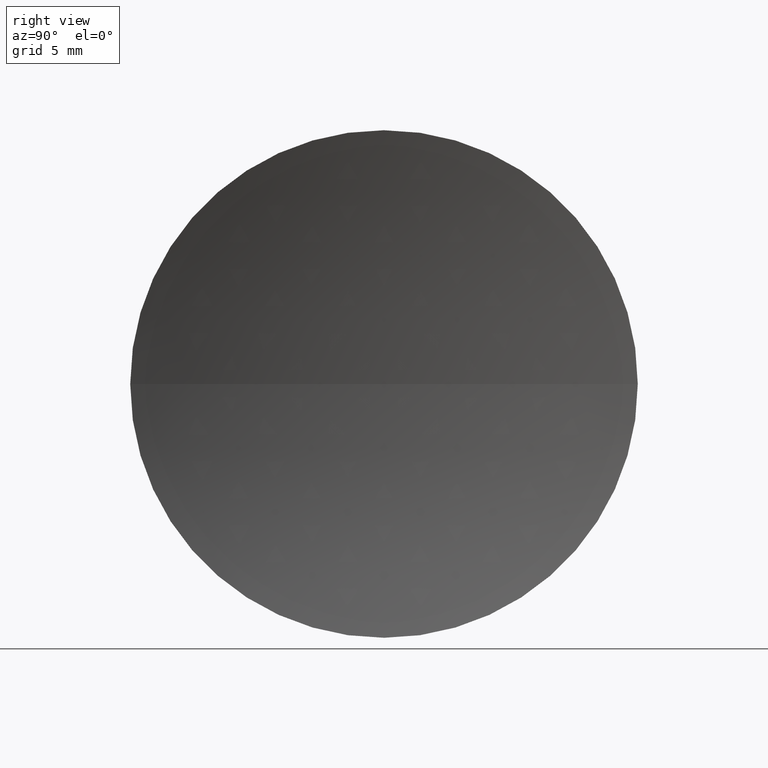
[diagram: clean part render]
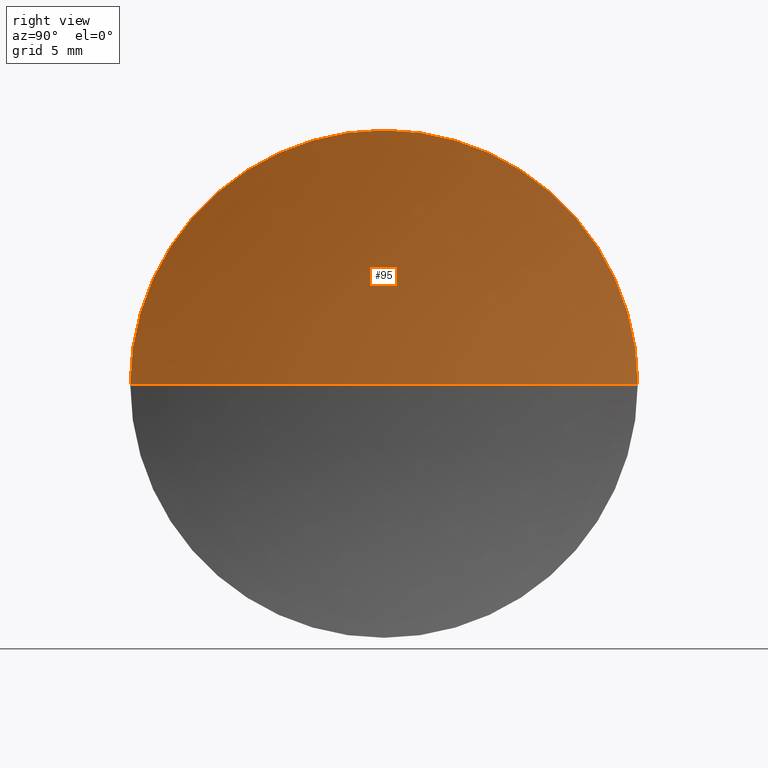
[diagram: same view with one face highlighted and labeled with its STEP entity id]
A machine part, right view. The second image highlights one B-rep face of the part: STEP entity #95.
In plain terms, the highlighted spherical surface has radius 46.6 mm.
Its self-contained STEP definition (entity closure, byte-faithful):
#6 = DIRECTION ( 'NONE',  ( 0.0000000000000000000, 0.0000000000000000000, -1.000000000000000000 ) ) ;
#11 = CARTESIAN_POINT ( 'NONE',  ( 123.6166688312012100, 65.22260287298739500, 12.69999999999998700 ) ) ;
#22 = CIRCLE ( 'NONE', #122, 46.60000000000019300 ) ;
#26 = DIRECTION ( 'NONE',  ( 0.0000000000000000000, 1.000000000000000000, 1.224646799147353200E-016 ) ) ;
#37 = CARTESIAN_POINT ( 'NONE',  ( 121.8527034462293400, 65.22260287298738000, 0.0000000000000000000 ) ) ;
#43 = FACE_OUTER_BOUND ( 'NONE', #160, .T. ) ;
#45 = DIRECTION ( 'NONE',  ( -1.000000000000000000, -0.0000000000000000000, -0.0000000000000000000 ) ) ;
#50 = VERTEX_POINT ( 'NONE', #37 ) ;
#51 = VERTEX_POINT ( 'NONE', #211 ) ;
#57 = CARTESIAN_POINT ( 'NONE',  ( 123.6166688312012100, 65.22260287298739500, 0.0000000000000000000 ) ) ;
#72 = CIRCLE ( 'NONE', #107, 46.60000000000019300 ) ;
#77 = DIRECTION ( 'NONE',  ( 0.0000000000000000000, 0.0000000000000000000, 1.000000000000000000 ) ) ;
#80 = CARTESIAN_POINT ( 'NONE',  ( 123.6166688312012100, 65.22260287298739500, 0.0000000000000000000 ) ) ;
#82 = ORIENTED_EDGE ( 'NONE', *, *, #212, .F. ) ;
#95 = ADVANCED_FACE ( 'NONE', ( #43 ), #139, .F. ) ;
#96 = DIRECTION ( 'NONE',  ( 0.0000000000000000000, 0.0000000000000000000, 1.000000000000000000 ) ) ;
#97 = EDGE_CURVE ( 'NONE', #215, #181, #105, .T. ) ;
#105 = CIRCLE ( 'NONE', #140, 12.69999999999998900 ) ;
#107 = AXIS2_PLACEMENT_3D ( 'NONE', #151, #127, #26 ) ;
#110 = AXIS2_PLACEMENT_3D ( 'NONE', #224, #6, #116 ) ;
#111 = DIRECTION ( 'NONE',  ( 1.000000000000000000, 0.0000000000000000000, 0.0000000000000000000 ) ) ;
#114 = DIRECTION ( 'NONE',  ( 0.0000000000000000000, 0.0000000000000000000, 1.000000000000000000 ) ) ;
#116 = DIRECTION ( 'NONE',  ( 0.0000000000000000000, 1.000000000000000000, 0.0000000000000000000 ) ) ;
#122 = AXIS2_PLACEMENT_3D ( 'NONE', #220, #114, #111 ) ;
#126 = DIRECTION ( 'NONE',  ( -1.000000000000000000, -0.0000000000000000000, -0.0000000000000000000 ) ) ;
#127 = DIRECTION ( 'NONE',  ( 0.0000000000000000000, 1.224646799147353200E-016, -1.000000000000000000 ) ) ;
#132 = ORIENTED_EDGE ( 'NONE', *, *, #167, .F. ) ;
#139 = SPHERICAL_SURFACE ( 'NONE', #110, 46.60000000000019300 ) ;
#140 = AXIS2_PLACEMENT_3D ( 'NONE', #57, #126, #77 ) ;
#151 = CARTESIAN_POINT ( 'NONE',  ( 168.4527034462295200, 65.22260287298738000, 0.0000000000000000000 ) ) ;
#157 = EDGE_CURVE ( 'NONE', #51, #50, #72, .T. ) ;
#160 = EDGE_LOOP ( 'NONE', ( #82, #221, #132, #190 ) ) ;
#167 = EDGE_CURVE ( 'NONE', #181, #50, #22, .T. ) ;
#169 = AXIS2_PLACEMENT_3D ( 'NONE', #80, #45, #96 ) ;
#181 = VERTEX_POINT ( 'NONE', #186 ) ;
#186 = CARTESIAN_POINT ( 'NONE',  ( 123.6166688312012100, 77.92260287298738300, 0.0000000000000000000 ) ) ;
#189 = CIRCLE ( 'NONE', #169, 12.69999999999998900 ) ;
#190 = ORIENTED_EDGE ( 'NONE', *, *, #97, .F. ) ;
#211 = CARTESIAN_POINT ( 'NONE',  ( 123.6166688312012100, 52.52260287298739900, -1.555301434917135500E-015 ) ) ;
#212 = EDGE_CURVE ( 'NONE', #51, #215, #189, .T. ) ;
#215 = VERTEX_POINT ( 'NONE', #11 ) ;
#221 = ORIENTED_EDGE ( 'NONE', *, *, #157, .T. ) ;
#220 = CARTESIAN_POINT ( 'NONE',  ( 168.4527034462295200, 65.22260287298738000, 0.0000000000000000000 ) ) ;
#224 = CARTESIAN_POINT ( 'NONE',  ( 168.4527034462295200, 65.22260287298738000, 0.0000000000000000000 ) ) ;